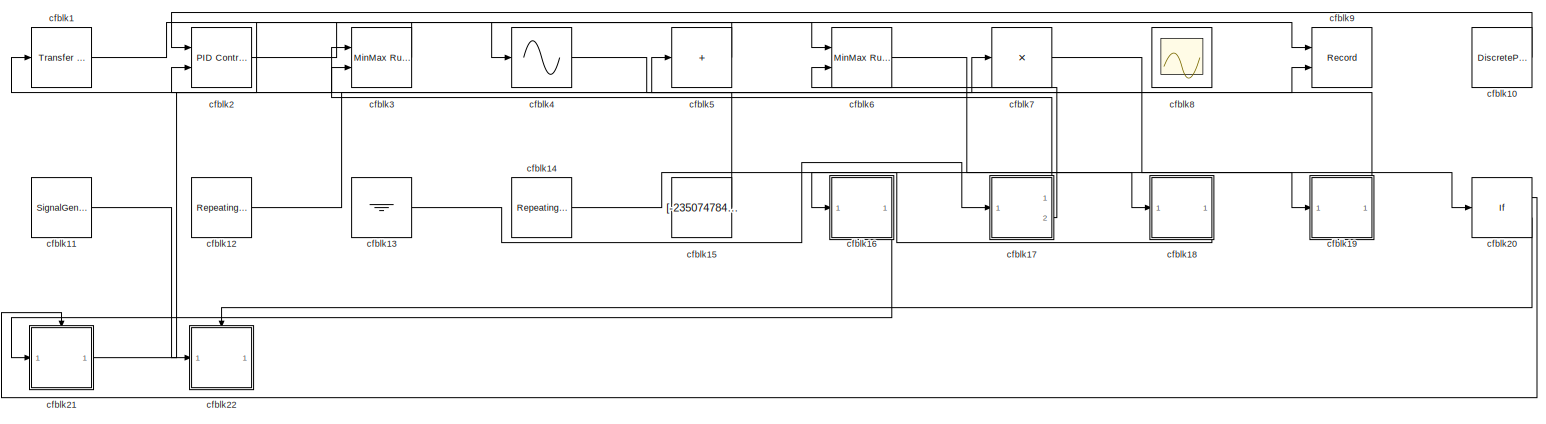
[diagram: root canvas - part 1/1, most of the canvas]
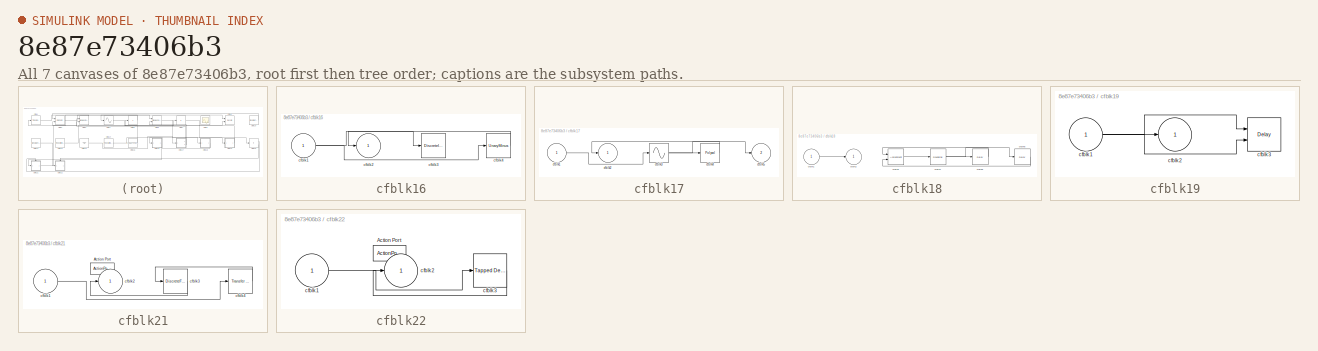
[diagram: thumbnail index - all 7 canvases of the model, root first then tree order]
MODEL slx_8e87e73406b3
KIND model
CONFIG AbsTol = auto
CONFIG EnableMultiTasking = off
CONFIG FixedStep = auto
CONFIG MaxStep = auto
CONFIG MinStep = auto
CONFIG RelTol = 1e-3
CONFIG SampleTimeConstraint = Unconstrained
CONFIG SolverName = VariableStepAuto
CONFIG StartTime = 0.0
CONFIG StopTime = 10.0
BLOCK [Reference] cfblk1  REF=simulink/Discrete/Transfer Fcn
First Order
  Ports = [1, 1]
  SourceBlock = simulink/Discrete/Transfer Fcn\nFirst Order
  SourceProductBaseCode = SL
  SourceType = First Order Transfer Fcn
BLOCK [DiscretePulseGenerator] cfblk10
  Amplitude = [-166964718.367846]
  Period = [67798607.410370]
  PhaseDelay = [7.000000]
  Ports = [0, 1]
  PulseType = Time based
  PulseWidth = 5
BLOCK [SignalGenerator] cfblk11
  Amplitude = [845395557.665785]
  Ports = [0, 1]
  WaveForm = sawtooth
BLOCK [Reference] cfblk12  REF=simulink/Sources/Repeating
Sequence
Stair
  Ports = [0, 1]
  SourceBlock = simulink/Sources/Repeating\nSequence\nStair
  SourceProductBaseCode = SL
  SourceType = Repeating Sequence Stair
BLOCK [Ground] cfblk13
BLOCK [Reference] cfblk14  REF=simulink/Sources/Repeating
Sequence
Stair
  Ports = [0, 1]
  SourceBlock = simulink/Sources/Repeating\nSequence\nStair
  SourceProductBaseCode = SL
  SourceType = Repeating Sequence Stair
BLOCK [Constant] cfblk15
  SampleTime = 1
  Value = [-235074784.054759]
BLOCK [SubSystem] cfblk16
  Ports = [1, 1]
  RequestExecContextInheritance = off
BLOCK [Inport] cfblk16/cfblk1
BLOCK [Outport] cfblk16/cfblk2
BLOCK [DiscreteIntegrator] cfblk16/cfblk3
  ICPrevOutput = DiscIntNeverNeededParam
  ICPrevScaledInput = DiscIntNeverNeededParam
  InitialConditionSetting = Auto
  Ports = [1, 1]
BLOCK [UnaryMinus] cfblk16/cfblk4
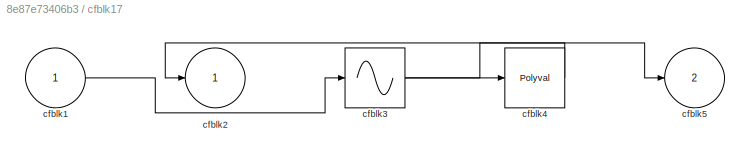
BLOCK [SubSystem] cfblk17
  Ports = [1, 2]
  RequestExecContextInheritance = off
BLOCK [Inport] cfblk17/cfblk1
BLOCK [Outport] cfblk17/cfblk2
BLOCK [Sin] cfblk17/cfblk3
  Ports = [1, 1]
  SampleTime = 0
  TimeSource = Use external signal
BLOCK [Polyval] cfblk17/cfblk4
  Coefs = [ +2.081618890e-019, -1.441693666e-014, +4.719686976e-010, -8.536869453e-006, +1.621573104e-001, -8.087801117e+001 ]
BLOCK [Outport] cfblk17/cfblk5
  Port = 2
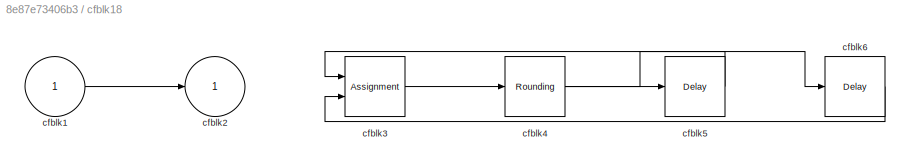
BLOCK [SubSystem] cfblk18
  Ports = [1, 1]
  RequestExecContextInheritance = off
BLOCK [Inport] cfblk18/cfblk1
BLOCK [Outport] cfblk18/cfblk2
BLOCK [Assignment] cfblk18/cfblk3
  DiagnosticForDimensions = Warning
  IndexOptions = Index vector (dialog)
  Indices = 1
  OutputSizes = 1
  Ports = [2, 1]
BLOCK [Rounding] cfblk18/cfblk4
BLOCK [Delay] cfblk18/cfblk5
  InputPortMap = u0
  Ports = [1, 1]
  SampleTime = 1
BLOCK [Delay] cfblk18/cfblk6
  InputPortMap = u0
  Ports = [1, 1]
  SampleTime = 1
BLOCK [SubSystem] cfblk19
  Ports = [1, 1]
  RequestExecContextInheritance = off
BLOCK [Inport] cfblk19/cfblk1
BLOCK [Outport] cfblk19/cfblk2
BLOCK [Delay] cfblk19/cfblk3
  InputPortMap = u0,e6
  Ports = [2, 1]
  SampleTime = 1
  ShowEnablePort = on
BLOCK [Reference] cfblk2  REF=slpidlib/PID Controller (2DOF)
  Ports = [2, 1]
  SourceBlock = slpidlib/PID Controller (2DOF)
  SourceProductBaseCode = SL
  SourceType = PID 2dof
BLOCK [If] cfblk20
  IfExpression = u1 >= 0
  Ports = [1, 2]
  SampleTime = 1
BLOCK [SubSystem] cfblk21
  Ports = [1, 1, 0, 0, 0, 0, 0, 1]
  RequestExecContextInheritance = off
  TreatAsAtomicUnit = on
BLOCK [ActionPort] cfblk21/Action Port
  ActionPortLabel = if(u1 >= 0)
BLOCK [Inport] cfblk21/cfblk1
BLOCK [Outport] cfblk21/cfblk2
BLOCK [DiscreteFilter] cfblk21/cfblk3
  InputPortMap = u0
  Ports = [1, 1]
BLOCK [Reference] cfblk21/cfblk4  REF=simulink/Discrete/Transfer Fcn
Lead or Lag
  Ports = [1, 1]
  SourceBlock = simulink/Discrete/Transfer Fcn\nLead or Lag
  SourceProductBaseCode = SL
  SourceType = Lead or Lag Compensator
BLOCK [SubSystem] cfblk22
  Ports = [1, 1, 0, 0, 0, 0, 0, 1]
  RequestExecContextInheritance = off
  TreatAsAtomicUnit = on
BLOCK [ActionPort] cfblk22/Action Port
  ActionPortLabel = else
BLOCK [Inport] cfblk22/cfblk1
BLOCK [Outport] cfblk22/cfblk2
BLOCK [Reference] cfblk22/cfblk3  REF=simulink/Discrete/Tapped Delay
  Ports = [1, 1]
  SourceBlock = simulink/Discrete/Tapped Delay
  SourceProductBaseCode = SL
  SourceType = Tapped Delay Line
BLOCK [Reference] cfblk3  REF=simulink/Math
Operations/MinMax
Running
Resettable
  Ports = [2, 1]
  SourceBlock = simulink/Math\nOperations/MinMax\nRunning\nResettable
  SourceProductBaseCode = SL
  SourceType = MinMax Running Resettable
BLOCK [Sin] cfblk4
  Ports = [1, 1]
  SampleTime = 0
  TimeSource = Use external signal
BLOCK [Sum] cfblk5
  IconShape = rectangular
  Inputs = +
  Ports = [1, 1]
BLOCK [Reference] cfblk6  REF=simulink/Math
Operations/MinMax
Running
Resettable
  Ports = [2, 1]
  SourceBlock = simulink/Math\nOperations/MinMax\nRunning\nResettable
  SourceProductBaseCode = SL
  SourceType = MinMax Running Resettable
BLOCK [Product] cfblk7
  Inputs = *
  Ports = [1, 1]
BLOCK [Scope] cfblk8
  Floating = on
  NumInputPorts = 1
  Ports = []
  ScopeSpecificationString = Simulink.scopes.TimeScopeBlockCfg('CurrentConfiguration', extmgr.ConfigurationSet(extmgr.Configuration('Core','General UI',true),extmgr.Configuration('Core','Source UI',true),extmgr.Configuration('Sources','WiredSimulink',true),extmgr.Configuration('Visuals','Time Domain',true),extmgr.Configuration('Tools','Plot Navigation',true),extmgr.Configuration('Tools','Measurements',true)),'Version','2021b'...<+1ch>
BLOCK [Record] cfblk9
  CompatibilityTag = XY
  FileSettingsInternal = {"entries":[{"content":{"excelSettings":{"content":{},"type":"Streamout.ExcelSettings"}},"type":"Streamout.FileSettingStorage","uuid":"0cbaa60b-dfc8-4895-831c-fedc8667fcb3"}],"packageUris":["http://schema.mathworks.com/mf0/streamout_blocks/R2020a"],"version":"1.0"}
  Layout = [1 1]
  Ports = [2]
  SignalsInternal = {"entries":[{"content":{"signals":[{"content":{"blockPath":["sampleModel466_pp/cfblk9"],"channel":[],"dimensions":[1],"domain":"sampleModel466_pp/cfblk9","lineColor":"#7e2f8e","plots":[],"port":1,"sid":[],"signalID":6997140,"signalName":"cfblk2"},"type":"RecordBlkView.Signal","uuid":"3c60dd71-3c12-4301-9b22-532efb815664"},{"content":{"blockPath":["sampleModel466_pp/cfblk9"],"channel":[],"dimension...<+389ch>
  VisualizationBindings = {"xyplotplugin":{"info":[{"series":[],"subplotID":1}]}}
LINE cfblk10:1 -> cfblk2:1
LINE cfblk11:1 -> cfblk22:1
LINE cfblk12:1 -> cfblk7:1
LINE cfblk13:1 -> cfblk17:1
LINE cfblk14:1 -> cfblk18:1
LINE cfblk15:1 -> cfblk5:1
NET cfblk16/cfblk1:1 -> cfblk16/cfblk3:1, cfblk16/cfblk4:1
LINE cfblk16/cfblk4:1 -> cfblk16/cfblk2:1
LINE cfblk16:1 -> cfblk21:1
LINE cfblk17/cfblk1:1 -> cfblk17/cfblk3:1
NET cfblk17/cfblk3:1 -> cfblk17/cfblk4:1, cfblk17/cfblk5:1
LINE cfblk17/cfblk4:1 -> cfblk17/cfblk2:1
LINE cfblk17:1 -> cfblk3:2
LINE cfblk17:2 -> cfblk6:2
LINE cfblk18/cfblk1:1 -> cfblk18/cfblk2:1
LINE cfblk18/cfblk3:1 -> cfblk18/cfblk4:1
NET cfblk18/cfblk4:1 -> cfblk18/cfblk5:1, cfblk18/cfblk6:1
LINE cfblk18/cfblk5:1 -> cfblk18/cfblk3:1
LINE cfblk18/cfblk6:1 -> cfblk18/cfblk3:2
LINE cfblk18:1 -> cfblk16:1
NET cfblk19/cfblk1:1 -> cfblk19/cfblk2:1, cfblk19/cfblk3:1, cfblk19/cfblk3:2
LINE cfblk19:1 -> cfblk2:2
LINE cfblk1:1 -> cfblk6:1
LINE cfblk20:1 -> cfblk21:ifaction
LINE cfblk20:2 -> cfblk22:ifaction
LINE cfblk21/cfblk1:1 -> cfblk21/cfblk4:1
LINE cfblk21/cfblk3:1 -> cfblk21/cfblk2:1
LINE cfblk21/cfblk4:1 -> cfblk21/cfblk3:1
LINE cfblk21:1 -> cfblk3:1
LINE cfblk22/cfblk1:1 -> cfblk22/cfblk3:1
LINE cfblk22/cfblk3:1 -> cfblk22/cfblk2:1
LINE cfblk2:1 -> cfblk9:1
LINE cfblk3:1 -> cfblk1:1
LINE cfblk4:1 -> cfblk9:2
LINE cfblk5:1 -> cfblk4:1
LINE cfblk6:1 -> cfblk19:1
LINE cfblk7:1 -> cfblk20:1
note: NET lines group one-source signal fan-out (src -> all destinations, sorted); 1:1 wires keep LINE
